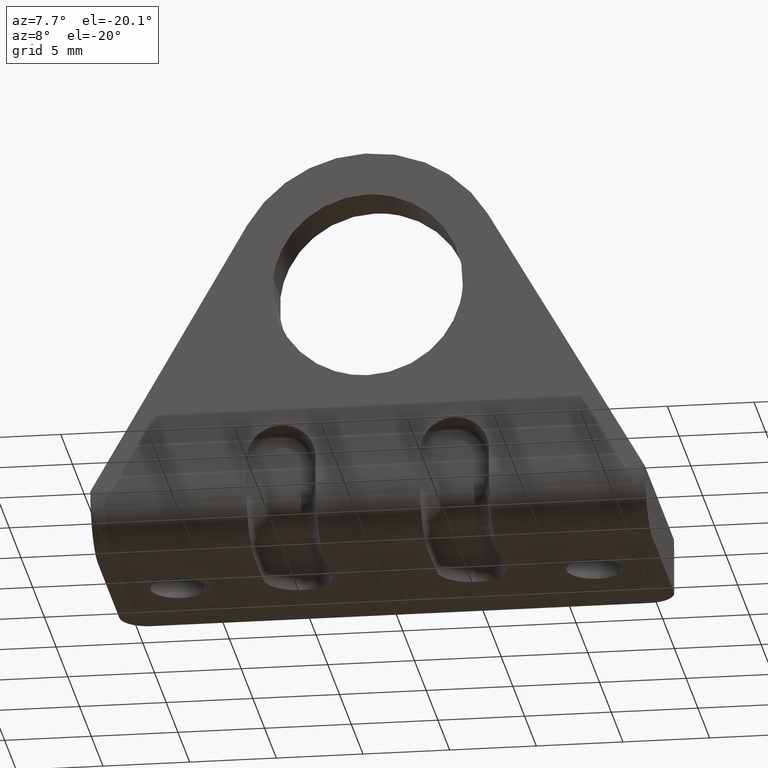
[diagram: clean part render]
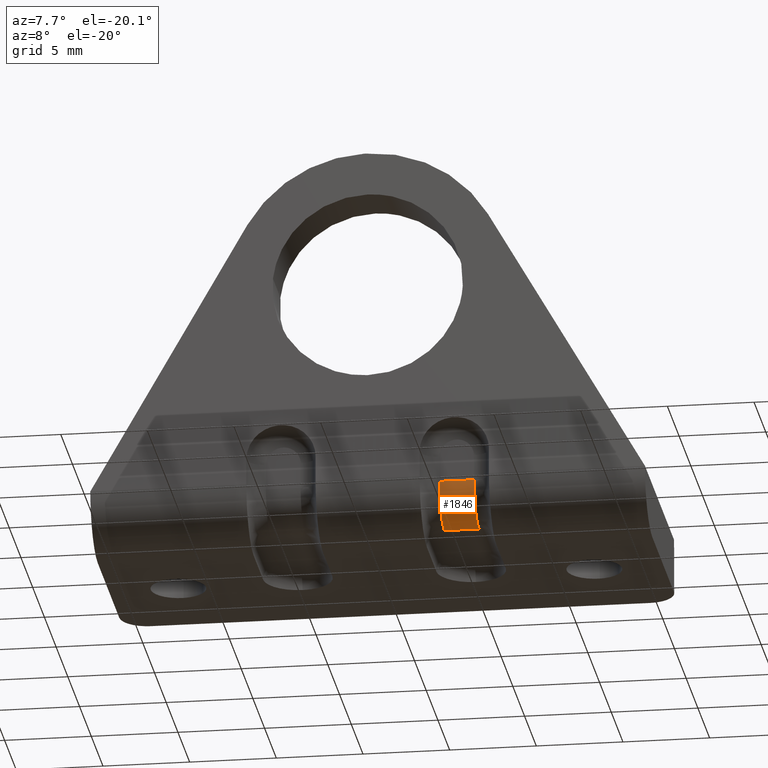
[diagram: same view with one face highlighted and labeled with its STEP entity id]
A machine part, auxiliary view. The second image highlights one B-rep face of the part: STEP entity #1846.
In plain terms, the highlighted face is a freeform B-spline surface patch.
Its self-contained STEP definition (entity closure, byte-faithful):
#1366=CARTESIAN_POINT('',(6.0,0.999999999999804,3.200000000000000));
#1367=VERTEX_POINT('',#1366);
#1534=CARTESIAN_POINT('',(6.0,3.199999999999805,1.0));
#1535=VERTEX_POINT('',#1534);
#1567=CARTESIAN_POINT('',(6.0,3.199999999999805,1.0));
#1568=CARTESIAN_POINT('',(6.0,0.999999999999805,1.0));
#1569=CARTESIAN_POINT('',(6.0,0.999999999999805,3.200000000000000));
#1577=(BOUNDED_CURVE()B_SPLINE_CURVE(2,(#1567,#1568,#1569),.UNSPECIFIED.,.F.,.U.)CURVE()GEOMETRIC_REPRESENTATION_ITEM()QUASI_UNIFORM_CURVE()RATIONAL_B_SPLINE_CURVE((1.0,0.707106781186548,1.0))REPRESENTATION_ITEM(''));
#1578=EDGE_CURVE('',#1535,#1367,#1577,.T.);
#1599=CARTESIAN_POINT('',(4.0,0.999999999999804,3.200000000000000));
#1600=VERTEX_POINT('',#1599);
#1676=CARTESIAN_POINT('',(4.0,3.199999999999805,1.0));
#1677=VERTEX_POINT('',#1676);
#1693=CARTESIAN_POINT('',(4.0,0.999999999999805,3.200000000000000));
#1694=CARTESIAN_POINT('',(4.000000000000000,0.999999999999805,1.0));
#1695=CARTESIAN_POINT('',(4.0,3.199999999999805,1.0));
#1703=(BOUNDED_CURVE()B_SPLINE_CURVE(2,(#1693,#1694,#1695),.UNSPECIFIED.,.F.,.U.)CURVE()GEOMETRIC_REPRESENTATION_ITEM()QUASI_UNIFORM_CURVE()RATIONAL_B_SPLINE_CURVE((1.0,0.707106781186548,1.0))REPRESENTATION_ITEM(''));
#1704=EDGE_CURVE('',#1600,#1677,#1703,.T.);
#1811=CARTESIAN_POINT('',(6.0,0.999999999999804,3.200000000000000));
#1812=CARTESIAN_POINT('',(4.0,0.999999999999804,3.200000000000000));
#1813=QUASI_UNIFORM_CURVE('',1,(#1811,#1812),.UNSPECIFIED.,.F.,.U.);
#1814=EDGE_CURVE('',#1367,#1600,#1813,.T.);
#1822=CARTESIAN_POINT('',(6.050000000000001,1.000753885053579,3.257589286277322));
#1823=CARTESIAN_POINT('',(3.948750000000000,1.000753885053579,3.257589286277322));
#1824=CARTESIAN_POINT('',(6.050000000000000,0.937317021613622,0.835033208869562));
#1825=CARTESIAN_POINT('',(3.948750000000000,0.937317021613622,0.835033208869562));
#1826=CARTESIAN_POINT('',(6.050000000000001,3.354704373678577,1.005446159975870));
#1827=CARTESIAN_POINT('',(3.948749999999999,3.354704373678577,1.005446159975870));
#1835=(BOUNDED_SURFACE()B_SPLINE_SURFACE(1,2,((#1822,#1824,#1826),(#1823,#1825,#1827)),.UNSPECIFIED.,.F.,.F.,.U.)B_SPLINE_SURFACE_WITH_KNOTS((2,2),(3,3),(0.0,2.101250000000001),(0.0,3.896513405642017),.UNSPECIFIED.)GEOMETRIC_REPRESENTATION_ITEM()RATIONAL_B_SPLINE_SURFACE(((1.0,0.670944202202064,0.996392690055120),(1.0,0.670944202202064,0.996392690055120)))REPRESENTATION_ITEM('')SURFACE());
#1836=CARTESIAN_POINT('',(6.0,3.199999999999805,1.0));
#1837=CARTESIAN_POINT('',(4.0,3.199999999999805,1.0));
#1838=QUASI_UNIFORM_CURVE('',1,(#1836,#1837),.UNSPECIFIED.,.F.,.U.);
#1839=EDGE_CURVE('',#1535,#1677,#1838,.T.);
#1840=ORIENTED_EDGE('',*,*,#1839,.F.);
#1841=ORIENTED_EDGE('',*,*,#1578,.T.);
#1842=ORIENTED_EDGE('',*,*,#1814,.T.);
#1843=ORIENTED_EDGE('',*,*,#1704,.T.);
#1844=EDGE_LOOP('',(#1840,#1841,#1842,#1843));
#1845=FACE_OUTER_BOUND('',#1844,.T.);
#1846=ADVANCED_FACE('',(#1845),#1835,.T.);